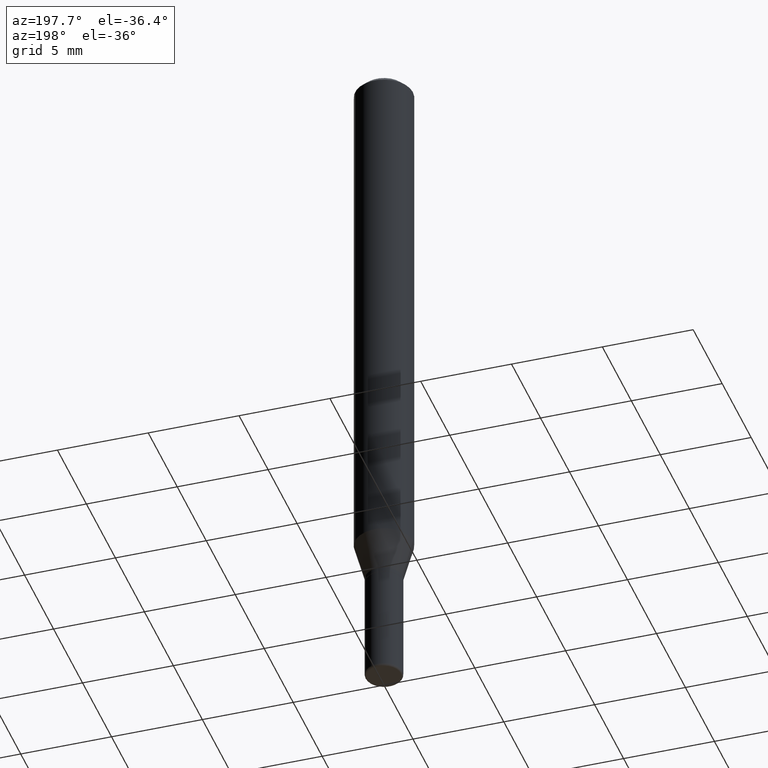
[diagram: clean part render]
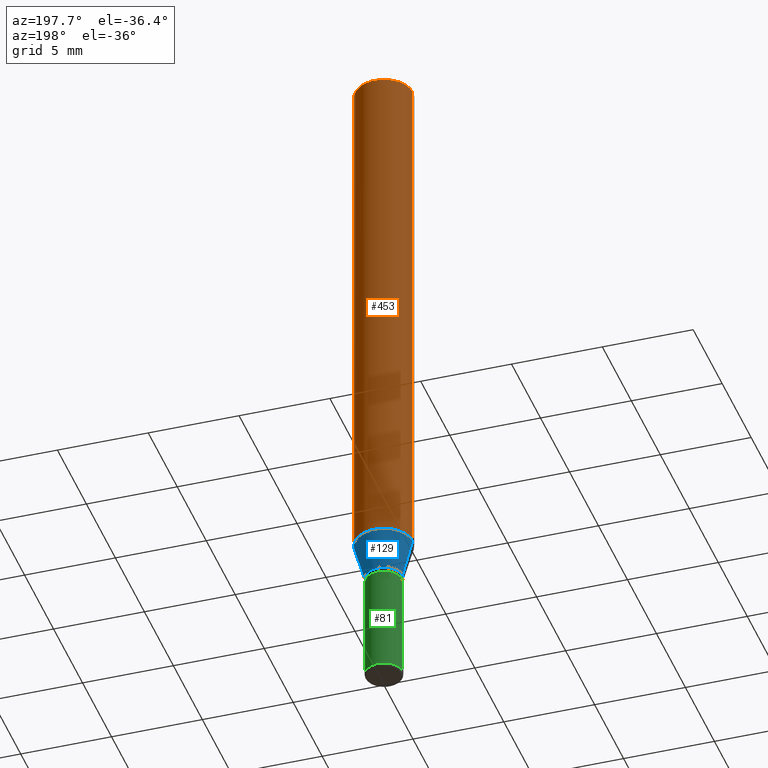
[diagram: same view with three faces highlighted in distinct colors, each labeled with its STEP entity id]
A machine part, auxiliary view with three faces highlighted in distinct colors.
Their STEP definitions:

[orange] entity #453 — the highlighted cylindrical surface (edge-blend (fillet) strip) has radius 1.5875 mm, axis along (-0, 0, 1).
#9 = FACE_OUTER_BOUND ( 'NONE', #382, .T. ) ;
#65 = CIRCLE ( 'NONE', #95, 0.06250000000000000000 ) ;
#74 = ORIENTED_EDGE ( 'NONE', *, *, #457, .T. ) ;
#92 = EDGE_CURVE ( 'NONE', #345, #386, #190, .T. ) ;
#93 = CYLINDRICAL_SURFACE ( 'NONE', #407, 0.06250000000000000000 ) ;
#95 = AXIS2_PLACEMENT_3D ( 'NONE', #337, #373, #498 ) ;
#116 = EDGE_CURVE ( 'NONE', #345, #348, #222, .T. ) ;
#131 = AXIS2_PLACEMENT_3D ( 'NONE', #142, #466, #511 ) ;
#142 = CARTESIAN_POINT ( 'NONE',  ( 2.851487196488745443E-29, -4.071167994173502356E-15, -1.166028856829699700 ) ) ;
#145 = VECTOR ( 'NONE', #509, 39.37007874015748143 ) ;
#169 = CARTESIAN_POINT ( 'NONE',  ( 0.06250000000000000000, -4.507603161528894025E-15, -1.166028856829699700 ) ) ;
#173 = ORIENTED_EDGE ( 'NONE', *, *, #479, .F. ) ;
#190 = LINE ( 'NONE', #346, #145 ) ;
#216 = LINE ( 'NONE', #488, #333 ) ;
#222 = CIRCLE ( 'NONE', #131, 0.06250000000000000000 ) ;
#252 = CARTESIAN_POINT ( 'NONE',  ( -0.06250000000000000000, -1.617680897278011707E-15, -0.01499999999999970281 ) ) ;
#256 = ORIENTED_EDGE ( 'NONE', *, *, #116, .T. ) ;
#257 = DIRECTION ( 'NONE',  ( -2.445468806185136597E-29, 3.491481338843145583E-15, 1.000000000000000000 ) ) ;
#329 = DIRECTION ( 'NONE',  ( -2.445468806185136877E-29, 3.491481338843145188E-15, 1.000000000000000000 ) ) ;
#333 = VECTOR ( 'NONE', #329, 39.37007874015748143 ) ;
#337 = CARTESIAN_POINT ( 'NONE',  ( 3.668203209277632395E-31, -5.237222008264614861E-17, -0.01499999999999970281 ) ) ;
#344 = ORIENTED_EDGE ( 'NONE', *, *, #92, .F. ) ;
#345 = VERTEX_POINT ( 'NONE', #169 ) ;
#346 = CARTESIAN_POINT ( 'NONE',  ( 0.06250000000000000000, -4.364351673553916694E-16, 3.047610484872459871E-30 ) ) ;
#348 = VERTEX_POINT ( 'NONE', #452 ) ;
#373 = DIRECTION ( 'NONE',  ( -2.445468806185136597E-29, 3.491481338843145583E-15, 1.000000000000000000 ) ) ;
#382 = EDGE_LOOP ( 'NONE', ( #256, #74, #173, #344 ) ) ;
#386 = VERTEX_POINT ( 'NONE', #494 ) ;
#407 = AXIS2_PLACEMENT_3D ( 'NONE', #455, #257, #491 ) ;
#452 = CARTESIAN_POINT ( 'NONE',  ( -0.06250000000000000000, -3.627078784323440528E-15, -1.166028856829699700 ) ) ;
#453 = ADVANCED_FACE ( 'NONE', ( #9 ), #93, .T. ) ;
#455 = CARTESIAN_POINT ( 'NONE',  ( 0.000000000000000000, 0.000000000000000000, 0.000000000000000000 ) ) ;
#457 = EDGE_CURVE ( 'NONE', #348, #503, #216, .T. ) ;
#466 = DIRECTION ( 'NONE',  ( -2.445468806185136597E-29, 3.491481338843145583E-15, 1.000000000000000000 ) ) ;
#479 = EDGE_CURVE ( 'NONE', #386, #503, #65, .T. ) ;
#488 = CARTESIAN_POINT ( 'NONE',  ( -0.06250000000000000000, 4.440892098500626162E-16, -3.074334431409316114E-30 ) ) ;
#491 = DIRECTION ( 'NONE',  ( 1.000000000000000000, -6.982962677686266711E-15, 4.876176775795935793E-29 ) ) ;
#494 = CARTESIAN_POINT ( 'NONE',  ( 0.06250000000000000000, -4.888073874380378612E-16, -0.01499999999999970281 ) ) ;
#498 = DIRECTION ( 'NONE',  ( 1.000000000000000000, -6.982962677686266711E-15, 0.000000000000000000 ) ) ;
#503 = VERTEX_POINT ( 'NONE', #252 ) ;
#509 = DIRECTION ( 'NONE',  ( -2.445468806185136877E-29, 3.491481338843145188E-15, 1.000000000000000000 ) ) ;
#511 = DIRECTION ( 'NONE',  ( 1.000000000000000000, -6.982962677686262766E-15, 0.000000000000000000 ) ) ;

[blue] entity #129 — the highlighted conical surface has half-angle 15 deg.
#26 = DIRECTION ( 'NONE',  ( -2.445468806185136597E-29, 3.491481338843145583E-15, 1.000000000000000000 ) ) ;
#29 = ORIENTED_EDGE ( 'NONE', *, *, #158, .T. ) ;
#31 = DIRECTION ( 'NONE',  ( -0.2588190451025207395, 5.211531920934546309E-15, 0.9659258262890682012 ) ) ;
#34 = ORIENTED_EDGE ( 'NONE', *, *, #280, .T. ) ;
#105 = DIRECTION ( 'NONE',  ( 1.000000000000000000, -6.982962677686260400E-15, 0.000000000000000000 ) ) ;
#115 = DIRECTION ( 'NONE',  ( -2.445468806185136597E-29, 3.491481338843145583E-15, 1.000000000000000000 ) ) ;
#116 = EDGE_CURVE ( 'NONE', #345, #348, #222, .T. ) ;
#129 = ADVANCED_FACE ( 'NONE', ( #147 ), #385, .T. ) ;
#131 = AXIS2_PLACEMENT_3D ( 'NONE', #142, #466, #511 ) ;
#142 = CARTESIAN_POINT ( 'NONE',  ( 2.851487196488745443E-29, -4.071167994173502356E-15, -1.166028856829699700 ) ) ;
#147 = FACE_OUTER_BOUND ( 'NONE', #363, .T. ) ;
#157 = CARTESIAN_POINT ( 'NONE',  ( 0.03999999999999993144, -4.643670180661380931E-15, -1.249999999999999778 ) ) ;
#158 = EDGE_CURVE ( 'NONE', #218, #348, #262, .T. ) ;
#161 = CARTESIAN_POINT ( 'NONE',  ( 3.056836007731420185E-29, -4.364351673553931682E-15, -1.249999999999999778 ) ) ;
#169 = CARTESIAN_POINT ( 'NONE',  ( 0.06250000000000000000, -4.507603161528894025E-15, -1.166028856829699700 ) ) ;
#189 = ORIENTED_EDGE ( 'NONE', *, *, #226, .F. ) ;
#208 = AXIS2_PLACEMENT_3D ( 'NONE', #161, #115, #446 ) ;
#214 = CIRCLE ( 'NONE', #208, 0.03999999999999993144 ) ;
#218 = VERTEX_POINT ( 'NONE', #323 ) ;
#222 = CIRCLE ( 'NONE', #131, 0.06250000000000000000 ) ;
#226 = EDGE_CURVE ( 'NONE', #274, #345, #239, .T. ) ;
#234 = CARTESIAN_POINT ( 'NONE',  ( -0.03999999999999993144, -4.080134579249892145E-15, -1.249999999999999778 ) ) ;
#239 = LINE ( 'NONE', #326, #258 ) ;
#258 = VECTOR ( 'NONE', #482, 39.37007874015748854 ) ;
#262 = LINE ( 'NONE', #234, #447 ) ;
#269 = CARTESIAN_POINT ( 'NONE',  ( 3.056836007731420185E-29, -4.364351673553931682E-15, -1.249999999999999778 ) ) ;
#274 = VERTEX_POINT ( 'NONE', #157 ) ;
#280 = EDGE_CURVE ( 'NONE', #274, #218, #214, .T. ) ;
#322 = AXIS2_PLACEMENT_3D ( 'NONE', #269, #26, #105 ) ;
#323 = CARTESIAN_POINT ( 'NONE',  ( -0.03999999999999993144, -3.853606681786666336E-15, -1.249999999999999778 ) ) ;
#326 = CARTESIAN_POINT ( 'NONE',  ( 0.03999999999999993144, -4.643670180661380931E-15, -1.249999999999999778 ) ) ;
#345 = VERTEX_POINT ( 'NONE', #169 ) ;
#348 = VERTEX_POINT ( 'NONE', #452 ) ;
#363 = EDGE_LOOP ( 'NONE', ( #34, #29, #369, #189 ) ) ;
#369 = ORIENTED_EDGE ( 'NONE', *, *, #116, .F. ) ;
#385 = CONICAL_SURFACE ( 'NONE', #322, 0.03999999999999993144, 0.2617993877991494633 ) ;
#446 = DIRECTION ( 'NONE',  ( 1.000000000000000000, -6.982962677686260400E-15, 0.000000000000000000 ) ) ;
#447 = VECTOR ( 'NONE', #31, 39.37007874015748854 ) ;
#452 = CARTESIAN_POINT ( 'NONE',  ( -0.06250000000000000000, -3.627078784323440528E-15, -1.166028856829699700 ) ) ;
#466 = DIRECTION ( 'NONE',  ( -2.445468806185136597E-29, 3.491481338843145583E-15, 1.000000000000000000 ) ) ;
#482 = DIRECTION ( 'NONE',  ( 0.2588190451025207395, 1.565188264969626109E-15, 0.9659258262890682012 ) ) ;
#511 = DIRECTION ( 'NONE',  ( 1.000000000000000000, -6.982962677686262766E-15, 0.000000000000000000 ) ) ;

[green] entity #81 — the highlighted cylindrical surface (edge-blend (fillet) strip) has radius 1.016 mm, axis along (-0, 0, 1).
#18 = VERTEX_POINT ( 'NONE', #200 ) ;
#20 = DIRECTION ( 'NONE',  ( 1.000000000000000000, -6.982962677686266711E-15, 4.876176775795935793E-29 ) ) ;
#44 = EDGE_CURVE ( 'NONE', #307, #202, #75, .T. ) ;
#53 = AXIS2_PLACEMENT_3D ( 'NONE', #343, #339, #461 ) ;
#67 = ORIENTED_EDGE ( 'NONE', *, *, #470, .T. ) ;
#70 = DIRECTION ( 'NONE',  ( 1.000000000000000000, -6.982962677686277755E-15, 0.000000000000000000 ) ) ;
#75 = CIRCLE ( 'NONE', #53, 0.04000000000000000083 ) ;
#81 = ADVANCED_FACE ( 'NONE', ( #228 ), #180, .T. ) ;
#91 = DIRECTION ( 'NONE',  ( -2.445468806185136877E-29, 3.491481338843145188E-15, 1.000000000000000000 ) ) ;
#104 = DIRECTION ( 'NONE',  ( -2.445468806185136597E-29, 3.491481338843145583E-15, 1.000000000000000000 ) ) ;
#122 = CARTESIAN_POINT ( 'NONE',  ( 0.03999999999999995226, -2.793185071074503332E-16, 1.950470710318371935E-30 ) ) ;
#127 = EDGE_CURVE ( 'NONE', #182, #18, #267, .T. ) ;
#128 = LINE ( 'NONE', #122, #178 ) ;
#134 = CARTESIAN_POINT ( 'NONE',  ( 0.000000000000000000, 0.000000000000000000, 0.000000000000000000 ) ) ;
#168 = VECTOR ( 'NONE', #91, 39.37007874015748143 ) ;
#175 = CARTESIAN_POINT ( 'NONE',  ( 0.03999999999999989675, -5.499083108677954756E-15, -1.495000000000000329 ) ) ;
#178 = VECTOR ( 'NONE', #296, 39.37007874015748143 ) ;
#180 = CYLINDRICAL_SURFACE ( 'NONE', #377, 0.03999999999999995226 ) ;
#182 = VERTEX_POINT ( 'NONE', #175 ) ;
#199 = AXIS2_PLACEMENT_3D ( 'NONE', #231, #104, #70 ) ;
#200 = CARTESIAN_POINT ( 'NONE',  ( -0.03999999999999989675, -4.525298449952393698E-15, -1.495000000000000329 ) ) ;
#202 = VERTEX_POINT ( 'NONE', #366 ) ;
#211 = ORIENTED_EDGE ( 'NONE', *, *, #44, .F. ) ;
#228 = FACE_OUTER_BOUND ( 'NONE', #263, .T. ) ;
#231 = CARTESIAN_POINT ( 'NONE',  ( 3.655975865246779683E-29, -5.219764601570503930E-15, -1.495000000000000329 ) ) ;
#263 = EDGE_LOOP ( 'NONE', ( #270, #67, #211, #380 ) ) ;
#267 = CIRCLE ( 'NONE', #199, 0.03999999999999989675 ) ;
#270 = ORIENTED_EDGE ( 'NONE', *, *, #127, .T. ) ;
#296 = DIRECTION ( 'NONE',  ( -2.445468806185136877E-29, 3.491481338843145188E-15, 1.000000000000000000 ) ) ;
#307 = VERTEX_POINT ( 'NONE', #408 ) ;
#339 = DIRECTION ( 'NONE',  ( -2.445468806185136597E-29, 3.491481338843145583E-15, 1.000000000000000000 ) ) ;
#343 = CARTESIAN_POINT ( 'NONE',  ( 3.081290695793272291E-29, -4.399266486942364120E-15, -1.260000000000000231 ) ) ;
#366 = CARTESIAN_POINT ( 'NONE',  ( -0.04000000000000000083, -4.525298449952393698E-15, -1.260000000000000231 ) ) ;
#377 = AXIS2_PLACEMENT_3D ( 'NONE', #134, #435, #20 ) ;
#380 = ORIENTED_EDGE ( 'NONE', *, *, #490, .F. ) ;
#408 = CARTESIAN_POINT ( 'NONE',  ( 0.04000000000000000083, -4.678584994049814947E-15, -1.260000000000000231 ) ) ;
#417 = LINE ( 'NONE', #456, #168 ) ;
#435 = DIRECTION ( 'NONE',  ( -2.445468806185136597E-29, 3.491481338843145583E-15, 1.000000000000000000 ) ) ;
#456 = CARTESIAN_POINT ( 'NONE',  ( -0.03999999999999995226, 2.842170943040397351E-16, -1.967574036101960057E-30 ) ) ;
#461 = DIRECTION ( 'NONE',  ( 1.000000000000000000, -6.982962677686259611E-15, 0.000000000000000000 ) ) ;
#470 = EDGE_CURVE ( 'NONE', #18, #202, #417, .T. ) ;
#490 = EDGE_CURVE ( 'NONE', #182, #307, #128, .T. ) ;